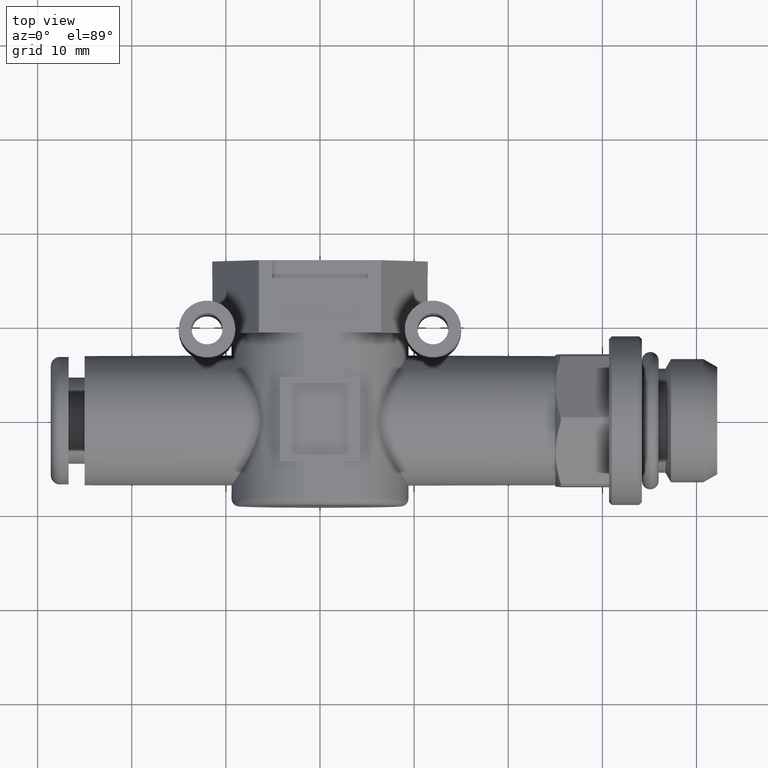
[diagram: clean part render]
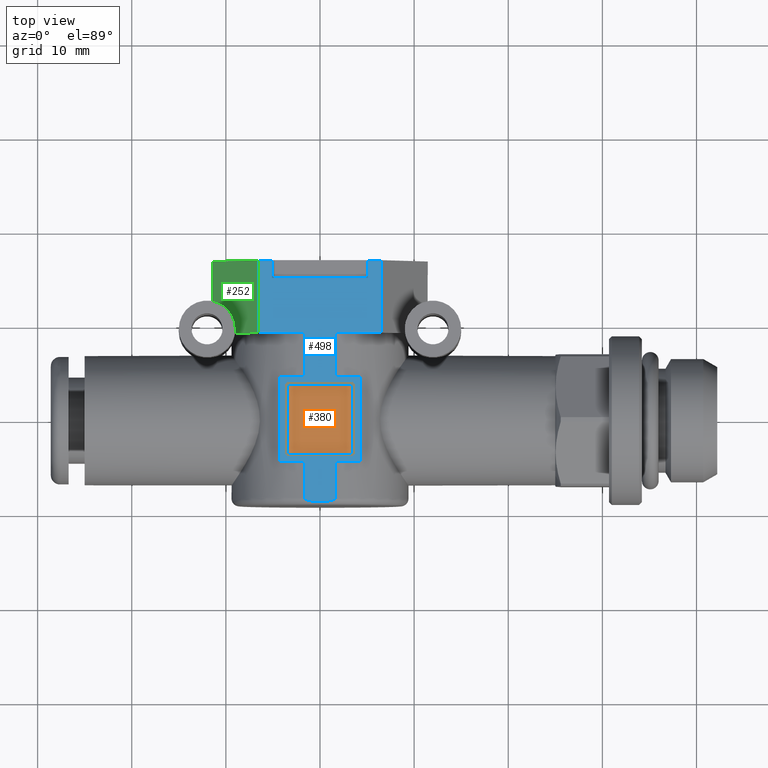
[diagram: same view with three faces highlighted in distinct colors, each labeled with its STEP entity id]
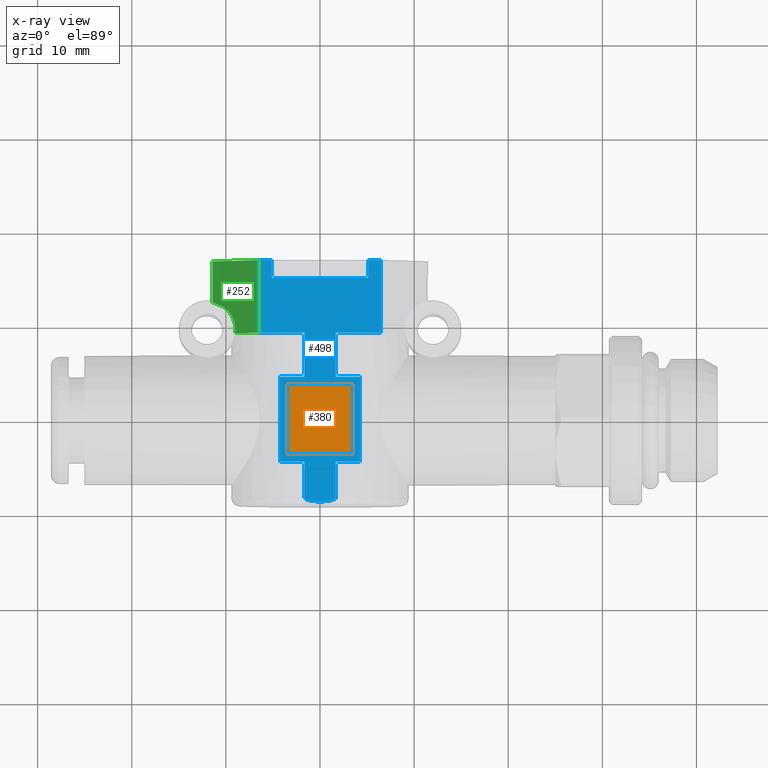
[diagram: x-ray of the same camera — body ghosted, the three highlighted faces saturated]
A machine part, top view with three faces highlighted in distinct colors.
The next image is the same camera in x-ray (body ghosted, the three faces saturated) — at least one of them is partly hidden behind the body in this view.
Their STEP definitions:

[orange] entity #380 — the highlighted planar face has unit normal (0, 0, 1).
#380 = ADVANCED_FACE( '', ( #813 ), #814, .T. );
#813 = FACE_OUTER_BOUND( '', #1350, .T. );
#814 = PLANE( '', #1351 );
#1350 = EDGE_LOOP( '', ( #2174, #2175, #2176, #2177 ) );
#1351 = AXIS2_PLACEMENT_3D( '', #2178, #2179, #2180 );
#2174 = ORIENTED_EDGE( '', *, *, #3063, .F. );
#2175 = ORIENTED_EDGE( '', *, *, #3006, .F. );
#2176 = ORIENTED_EDGE( '', *, *, #3115, .T. );
#2177 = ORIENTED_EDGE( '', *, *, #2869, .T. );
#2178 = CARTESIAN_POINT( '', ( 3.50000000000000, 3.75000000000000, 8.95000000000000 ) );
#2179 = DIRECTION( '', ( 0.000000000000000, -0.000000000000000, 1.00000000000000 ) );
#2180 = DIRECTION( '', ( 1.00000000000000, 0.000000000000000, -0.000000000000000 ) );
#2869 = EDGE_CURVE( '', #3336, #3333, #3337, .T. );
#3006 = EDGE_CURVE( '', #3564, #3560, #3566, .T. );
#3063 = EDGE_CURVE( '', #3560, #3333, #3656, .T. );
#3115 = EDGE_CURVE( '', #3564, #3336, #3732, .T. );
#3333 = VERTEX_POINT( '', #4015 );
#3336 = VERTEX_POINT( '', #4019 );
#3337 = LINE( '', #4020, #4021 );
#3560 = VERTEX_POINT( '', #4541 );
#3564 = VERTEX_POINT( '', #4547 );
#3566 = LINE( '', #4550, #4551 );
#3656 = LINE( '', #4802, #4803 );
#3732 = LINE( '', #4949, #4950 );
#4015 = CARTESIAN_POINT( '', ( -3.50000000000000, -3.75000000000000, 8.95000000000000 ) );
#4019 = CARTESIAN_POINT( '', ( -3.50000000000000, 3.75000000000000, 8.95000000000000 ) );
#4020 = CARTESIAN_POINT( '', ( -3.50000000000000, 3.75000000000000, 8.95000000000000 ) );
#4021 = VECTOR( '', #5446, 1000.00000000000 );
#4541 = CARTESIAN_POINT( '', ( 3.50000000000000, -3.75000000000000, 8.95000000000000 ) );
#4547 = CARTESIAN_POINT( '', ( 3.50000000000000, 3.75000000000000, 8.95000000000000 ) );
#4550 = CARTESIAN_POINT( '', ( 3.50000000000000, 3.75000000000000, 8.95000000000000 ) );
#4551 = VECTOR( '', #5611, 1000.00000000000 );
#4802 = CARTESIAN_POINT( '', ( 3.50000000000000, -3.75000000000000, 8.95000000000000 ) );
#4803 = VECTOR( '', #5692, 1000.00000000000 );
#4949 = CARTESIAN_POINT( '', ( 3.50000000000000, 3.75000000000000, 8.95000000000000 ) );
#4950 = VECTOR( '', #5754, 1000.00000000000 );
#5446 = DIRECTION( '', ( -0.000000000000000, -1.00000000000000, -0.000000000000000 ) );
#5611 = DIRECTION( '', ( -0.000000000000000, -1.00000000000000, -0.000000000000000 ) );
#5692 = DIRECTION( '', ( -1.00000000000000, 0.000000000000000, 0.000000000000000 ) );
#5754 = DIRECTION( '', ( -1.00000000000000, 0.000000000000000, 0.000000000000000 ) );

[blue] entity #498 — the highlighted planar face has unit normal (0, 0, -1).
#498 = ADVANCED_FACE( '', ( #1025, #1026 ), #1027, .F. );
#1025 = FACE_BOUND( '', #1562, .T. );
#1026 = FACE_OUTER_BOUND( '', #1563, .T. );
#1027 = PLANE( '', #1564 );
#1562 = EDGE_LOOP( '', ( #2645, #2646, #2647, #2648 ) );
#1563 = EDGE_LOOP( '', ( #2649, #2650, #2651, #2652, #2653, #2654, #2655, #2656, #2657, #2658, #2659, #2660, #2661, #2662, #2663, #2664, #2665, #2666, #2667, #2668 ) );
#1564 = AXIS2_PLACEMENT_3D( '', #2669, #2670, #2671 );
#2645 = ORIENTED_EDGE( '', *, *, #2871, .F. );
#2646 = ORIENTED_EDGE( '', *, *, #3257, .T. );
#2647 = ORIENTED_EDGE( '', *, *, #3004, .T. );
#2648 = ORIENTED_EDGE( '', *, *, #3064, .F. );
#2649 = ORIENTED_EDGE( '', *, *, #2951, .F. );
#2650 = ORIENTED_EDGE( '', *, *, #3185, .T. );
#2651 = ORIENTED_EDGE( '', *, *, #3262, .F. );
#2652 = ORIENTED_EDGE( '', *, *, #2848, .T. );
#2653 = ORIENTED_EDGE( '', *, *, #2965, .T. );
#2654 = ORIENTED_EDGE( '', *, *, #3040, .F. );
#2655 = ORIENTED_EDGE( '', *, *, #2873, .T. );
#2656 = ORIENTED_EDGE( '', *, *, #3144, .T. );
#2657 = ORIENTED_EDGE( '', *, *, #3263, .T. );
#2658 = ORIENTED_EDGE( '', *, *, #3037, .F. );
#2659 = ORIENTED_EDGE( '', *, *, #3200, .T. );
#2660 = ORIENTED_EDGE( '', *, *, #3082, .F. );
#2661 = ORIENTED_EDGE( '', *, *, #2959, .T. );
#2662 = ORIENTED_EDGE( '', *, *, #3197, .T. );
#2663 = ORIENTED_EDGE( '', *, *, #3055, .T. );
#2664 = ORIENTED_EDGE( '', *, *, #3080, .F. );
#2665 = ORIENTED_EDGE( '', *, *, #3181, .T. );
#2666 = ORIENTED_EDGE( '', *, *, #2865, .F. );
#2667 = ORIENTED_EDGE( '', *, *, #3240, .F. );
#2668 = ORIENTED_EDGE( '', *, *, #3174, .T. );
#2669 = CARTESIAN_POINT( '', ( -10.0000000000000, 10.0000000000000, 9.25000000000000 ) );
#2670 = DIRECTION( '', ( 0.000000000000000, 0.000000000000000, -1.00000000000000 ) );
#2671 = DIRECTION( '', ( -1.00000000000000, 0.000000000000000, 0.000000000000000 ) );
#2848 = EDGE_CURVE( '', #3298, #3296, #3299, .T. );
#2865 = EDGE_CURVE( '', #3327, #3329, #3330, .T. );
#2871 = EDGE_CURVE( '', #3338, #3334, #3340, .T. );
#2873 = EDGE_CURVE( '', #3342, #3343, #3344, .T. );
#2951 = EDGE_CURVE( '', #3473, #3474, #3475, .T. );
#2959 = EDGE_CURVE( '', #3487, #3488, #3489, .T. );
#2965 = EDGE_CURVE( '', #3296, #3496, #3498, .T. );
#3004 = EDGE_CURVE( '', #3562, #3559, #3563, .T. );
#3037 = EDGE_CURVE( '', #3613, #3615, #3616, .F. );
#3040 = EDGE_CURVE( '', #3342, #3496, #3620, .F. );
#3055 = EDGE_CURVE( '', #3639, #3642, #3644, .T. );
#3064 = EDGE_CURVE( '', #3334, #3559, #3657, .T. );
#3080 = EDGE_CURVE( '', #3682, #3642, #3684, .T. );
#3082 = EDGE_CURVE( '', #3487, #3670, #3686, .T. );
#3144 = EDGE_CURVE( '', #3343, #3773, #3775, .T. );
#3174 = EDGE_CURVE( '', #3813, #3474, #3815, .T. );
#3181 = EDGE_CURVE( '', #3682, #3329, #3824, .T. );
#3185 = EDGE_CURVE( '', #3473, #3827, #3829, .T. );
#3197 = EDGE_CURVE( '', #3488, #3639, #3846, .T. );
#3200 = EDGE_CURVE( '', #3613, #3670, #3849, .T. );
#3240 = EDGE_CURVE( '', #3813, #3327, #3902, .T. );
#3257 = EDGE_CURVE( '', #3338, #3562, #3923, .T. );
#3262 = EDGE_CURVE( '', #3298, #3827, #3929, .T. );
#3263 = EDGE_CURVE( '', #3773, #3615, #3930, .T. );
#3296 = VERTEX_POINT( '', #3964 );
#3298 = VERTEX_POINT( '', #3967 );
#3299 = LINE( '', #3968, #3969 );
#3327 = VERTEX_POINT( '', #4006 );
#3329 = VERTEX_POINT( '', #4009 );
#3330 = LINE( '', #4010, #4011 );
#3334 = VERTEX_POINT( '', #4016 );
#3338 = VERTEX_POINT( '', #4022 );
#3340 = LINE( '', #4025, #4026 );
#3342 = VERTEX_POINT( '', #4028 );
#3343 = VERTEX_POINT( '', #4029 );
#3344 = LINE( '', #4030, #4031 );
#3473 = VERTEX_POINT( '', #4326 );
#3474 = VERTEX_POINT( '', #4327 );
#3475 = LINE( '', #4328, #4329 );
#3487 = VERTEX_POINT( '', #4346 );
#3488 = VERTEX_POINT( '', #4347 );
#3489 = LINE( '', #4348, #4349 );
#3496 = VERTEX_POINT( '', #4358 );
#3498 = LINE( '', #4360, #4361 );
#3559 = VERTEX_POINT( '', #4540 );
#3562 = VERTEX_POINT( '', #4544 );
#3563 = LINE( '', #4545, #4546 );
#3613 = VERTEX_POINT( '', #4748 );
#3615 = VERTEX_POINT( '', #4750 );
#3616 = LINE( '', #4751, #4752 );
#3620 = LINE( '', #4757, #4758 );
#3639 = VERTEX_POINT( '', #4783 );
#3642 = VERTEX_POINT( '', #4787 );
#3644 = LINE( '', #4789, #4790 );
#3657 = LINE( '', #4804, #4805 );
#3670 = VERTEX_POINT( '', #4823 );
#3682 = VERTEX_POINT( '', #4885 );
#3684 = LINE( '', #4887, #4888 );
#3686 = LINE( '', #4891, #4892 );
#3773 = VERTEX_POINT( '', #5006 );
#3775 = LINE( '', #5009, #5010 );
#3813 = VERTEX_POINT( '', #5116 );
#3815 = LINE( '', #5119, #5120 );
#3824 = LINE( '', #5129, #5130 );
#3827 = VERTEX_POINT( '', #5133 );
#3829 = LINE( '', #5136, #5137 );
#3846 = LINE( '', #5157, #5158 );
#3849 = B_SPLINE_CURVE_WITH_KNOTS( '', 3, ( #5182, #5183, #5184, #5185, #5186, #5187, #5188, #5189, #5190, #5191, #5192, #5193, #5194, #5195, #5196, #5197, #5198, #5199, #5200, #5201, #5202, #5203 ), .UNSPECIFIED., .F., .F., ( 4, 2, 2, 2, 2, 2, 2, 2, 2, 2, 4 ), ( 0.00548674398466226, 0.00560066561936967, 0.00571458725407708, 0.00594243052349190, 0.00639811706232154, 0.00730949013998081, 0.00822086321764009, 0.00867654975646972, 0.00890439302588454, 0.00901831466059195, 0.00913223629529936 ), .UNSPECIFIED. );
#3902 = LINE( '', #5305, #5306 );
#3923 = LINE( '', #5376, #5377 );
#3929 = LINE( '', #5383, #5384 );
#3930 = LINE( '', #5385, #5386 );
#3964 = CARTESIAN_POINT( '', ( -6.49519052838329, 9.20000000000000, 9.25000000000000 ) );
#3967 = CARTESIAN_POINT( '', ( -6.49519052838329, 16.9000000000000, 9.25000000000000 ) );
#3968 = CARTESIAN_POINT( '', ( -6.49519052838329, 16.9000000000000, 9.25000000000000 ) );
#3969 = VECTOR( '', #5423, 1000.00000000000 );
#4006 = CARTESIAN_POINT( '', ( 6.49519052838329, 16.9000000000000, 9.25000000000000 ) );
#4009 = CARTESIAN_POINT( '', ( 6.49519052838329, 9.20000000000000, 9.25000000000000 ) );
#4010 = CARTESIAN_POINT( '', ( 6.49519052838329, 16.9000000000000, 9.25000000000000 ) );
#4011 = VECTOR( '', #5443, 1000.00000000000 );
#4016 = CARTESIAN_POINT( '', ( -3.50000000000000, -3.75000000000000, 9.25000000000000 ) );
#4022 = CARTESIAN_POINT( '', ( -3.50000000000000, 3.75000000000000, 9.25000000000000 ) );
#4025 = CARTESIAN_POINT( '', ( -3.50000000000000, 3.75000000000000, 9.25000000000000 ) );
#4026 = VECTOR( '', #5448, 1000.00000000000 );
#4028 = CARTESIAN_POINT( '', ( -1.67257286836778, 4.50000000000000, 9.25000000000000 ) );
#4029 = CARTESIAN_POINT( '', ( -4.25000000000000, 4.50000000000000, 9.25000000000000 ) );
#4030 = CARTESIAN_POINT( '', ( 4.25000000000000, 4.50000000000000, 9.25000000000000 ) );
#4031 = VECTOR( '', #5449, 1000.00000000000 );
#4326 = CARTESIAN_POINT( '', ( -5.10954988232819, 15.0000000000000, 9.25000000000000 ) );
#4327 = CARTESIAN_POINT( '', ( 5.10954988232819, 15.0000000000000, 9.25000000000000 ) );
#4328 = CARTESIAN_POINT( '', ( -10.0000000000000, 15.0000000000000, 9.25000000000000 ) );
#4329 = VECTOR( '', #5555, 1000.00000000000 );
#4346 = CARTESIAN_POINT( '', ( 1.67257286836824, -4.50000000000000, 9.25000000000000 ) );
#4347 = CARTESIAN_POINT( '', ( 4.25000000000000, -4.50000000000000, 9.25000000000000 ) );
#4348 = CARTESIAN_POINT( '', ( -4.25000000000000, -4.50000000000000, 9.25000000000000 ) );
#4349 = VECTOR( '', #5564, 1000.00000000000 );
#4358 = CARTESIAN_POINT( '', ( -1.67257286836778, 9.20000000000000, 9.25000000000000 ) );
#4360 = CARTESIAN_POINT( '', ( -6.49519052838329, 9.20000000000000, 9.25000000000000 ) );
#4361 = VECTOR( '', #5573, 1000.00000000000 );
#4540 = CARTESIAN_POINT( '', ( 3.50000000000000, -3.75000000000000, 9.25000000000000 ) );
#4544 = CARTESIAN_POINT( '', ( 3.50000000000000, 3.75000000000000, 9.25000000000000 ) );
#4545 = CARTESIAN_POINT( '', ( 3.50000000000000, 3.75000000000000, 9.25000000000000 ) );
#4546 = VECTOR( '', #5609, 1000.00000000000 );
#4748 = CARTESIAN_POINT( '', ( -1.67257286836778, -8.30000000000000, 9.25000000000000 ) );
#4750 = CARTESIAN_POINT( '', ( -1.67257286836778, -4.50000000000000, 9.25000000000000 ) );
#4751 = CARTESIAN_POINT( '', ( -1.67257286836778, -9.10000000000000, 9.25000000000000 ) );
#4752 = VECTOR( '', #5657, 1000.00000000000 );
#4757 = CARTESIAN_POINT( '', ( -1.67257286836778, -9.10000000000000, 9.25000000000000 ) );
#4758 = VECTOR( '', #5662, 1000.00000000000 );
#4783 = CARTESIAN_POINT( '', ( 4.25000000000000, 4.50000000000000, 9.25000000000000 ) );
#4787 = CARTESIAN_POINT( '', ( 1.67257286836778, 4.50000000000000, 9.25000000000000 ) );
#4789 = CARTESIAN_POINT( '', ( 4.25000000000000, 4.50000000000000, 9.25000000000000 ) );
#4790 = VECTOR( '', #5679, 1000.00000000000 );
#4804 = CARTESIAN_POINT( '', ( -3.50000000000000, -3.75000000000000, 9.25000000000000 ) );
#4805 = VECTOR( '', #5693, 1000.00000000000 );
#4823 = CARTESIAN_POINT( '', ( 1.67257286836870, -8.30000000000078, 9.25000000000000 ) );
#4885 = CARTESIAN_POINT( '', ( 1.67257286836778, 9.20000000000000, 9.25000000000000 ) );
#4887 = CARTESIAN_POINT( '', ( 1.67257286836778, -9.10000000000000, 9.25000000000000 ) );
#4888 = VECTOR( '', #5713, 1000.00000000000 );
#4891 = CARTESIAN_POINT( '', ( 1.67257286836778, -9.10000000000000, 9.25000000000000 ) );
#4892 = VECTOR( '', #5715, 1000.00000000000 );
#5006 = CARTESIAN_POINT( '', ( -4.25000000000000, -4.50000000000000, 9.25000000000000 ) );
#5009 = CARTESIAN_POINT( '', ( -4.25000000000000, 4.50000000000000, 9.25000000000000 ) );
#5010 = VECTOR( '', #5790, 1000.00000000000 );
#5116 = CARTESIAN_POINT( '', ( 5.10954988232819, 16.9000000000000, 9.25000000000000 ) );
#5119 = CARTESIAN_POINT( '', ( 5.10954988232819, 10.0000000000000, 9.25000000000000 ) );
#5120 = VECTOR( '', #5824, 1000.00000000000 );
#5129 = CARTESIAN_POINT( '', ( -6.49519052838329, 9.20000000000000, 9.25000000000000 ) );
#5130 = VECTOR( '', #5831, 1000.00000000000 );
#5133 = CARTESIAN_POINT( '', ( -5.10954988232819, 16.9000000000000, 9.25000000000000 ) );
#5136 = CARTESIAN_POINT( '', ( -5.10954988232819, 10.0000000000000, 9.25000000000000 ) );
#5137 = VECTOR( '', #5833, 1000.00000000000 );
#5157 = CARTESIAN_POINT( '', ( 4.25000000000000, -4.50000000000000, 9.25000000000000 ) );
#5158 = VECTOR( '', #5849, 1000.00000000000 );
#5182 = CARTESIAN_POINT( '', ( -1.67257286837443, -8.29999999999996, 9.25000000000000 ) );
#5183 = CARTESIAN_POINT( '', ( -1.67257286837444, -8.33806728583355, 9.25000000000000 ) );
#5184 = CARTESIAN_POINT( '', ( -1.65587314777277, -8.37549144049542, 9.25000000000000 ) );
#5185 = CARTESIAN_POINT( '', ( -1.60943639738337, -8.43601463646205, 9.25000000000000 ) );
#5186 = CARTESIAN_POINT( '', ( -1.57983493554609, -8.46129566916637, 9.25000000000000 ) );
#5187 = CARTESIAN_POINT( '', ( -1.48650135326004, -8.52683194244745, 9.25000000000000 ) );
#5188 = CARTESIAN_POINT( '', ( -1.41625161918915, -8.55876215565025, 9.25000000000000 ) );
#5189 = CARTESIAN_POINT( '', ( -1.20450962645265, -8.63859459409826, 9.25000000000000 ) );
#5190 = CARTESIAN_POINT( '', ( -1.05599758131416, -8.67191149100260, 9.25000000000000 ) );
#5191 = CARTESIAN_POINT( '', ( -0.608813987277906, -8.74816739329717, 9.25000000000001 ) );
#5192 = CARTESIAN_POINT( '', ( -0.307768663372542, -8.76613227286528, 9.25000000000000 ) );
#5193 = CARTESIAN_POINT( '', ( 0.297475030797506, -8.76660164108544, 9.25000000000000 ) );
#5194 = CARTESIAN_POINT( '', ( 0.603875096460102, -8.74870138543589, 9.25000000000000 ) );
#5195 = CARTESIAN_POINT( '', ( 1.05303643696222, -8.67256776467147, 9.25000000000000 ) );
#5196 = CARTESIAN_POINT( '', ( 1.20095642052042, -8.63971541027620, 9.25000000000000 ) );
#5197 = CARTESIAN_POINT( '', ( 1.41531726153773, -8.55922178759227, 9.25000000000000 ) );
#5198 = CARTESIAN_POINT( '', ( 1.48562053223312, -8.52739280964452, 9.25000000000000 ) );
#5199 = CARTESIAN_POINT( '', ( 1.57985642235266, -8.46130920047564, 9.25000000000000 ) );
#5200 = CARTESIAN_POINT( '', ( 1.60935039700309, -8.43612464844256, 9.25000000000000 ) );
#5201 = CARTESIAN_POINT( '', ( 1.65594873919592, -8.37539499454185, 9.25000000000000 ) );
#5202 = CARTESIAN_POINT( '', ( 1.67257286836781, -8.33824448453661, 9.25000000000000 ) );
#5203 = CARTESIAN_POINT( '', ( 1.67257286836803, -8.30000000000083, 9.25000000000000 ) );
#5305 = CARTESIAN_POINT( '', ( -6.49519052838329, 16.9000000000000, 9.25000000000000 ) );
#5306 = VECTOR( '', #5901, 1000.00000000000 );
#5376 = CARTESIAN_POINT( '', ( -3.50000000000000, 3.75000000000000, 9.25000000000000 ) );
#5377 = VECTOR( '', #5911, 1000.00000000000 );
#5383 = CARTESIAN_POINT( '', ( -6.49519052838329, 16.9000000000000, 9.25000000000000 ) );
#5384 = VECTOR( '', #5915, 1000.00000000000 );
#5385 = CARTESIAN_POINT( '', ( -4.25000000000000, -4.50000000000000, 9.25000000000000 ) );
#5386 = VECTOR( '', #5916, 1000.00000000000 );
#5423 = DIRECTION( '', ( -0.000000000000000, -1.00000000000000, -0.000000000000000 ) );
#5443 = DIRECTION( '', ( -0.000000000000000, -1.00000000000000, -0.000000000000000 ) );
#5448 = DIRECTION( '', ( -0.000000000000000, -1.00000000000000, -0.000000000000000 ) );
#5449 = DIRECTION( '', ( -1.00000000000000, 0.000000000000000, 0.000000000000000 ) );
#5555 = DIRECTION( '', ( 1.00000000000000, -0.000000000000000, 0.000000000000000 ) );
#5564 = DIRECTION( '', ( 1.00000000000000, 0.000000000000000, 0.000000000000000 ) );
#5573 = DIRECTION( '', ( 1.00000000000000, 0.000000000000000, 2.67078150886606E-016 ) );
#5609 = DIRECTION( '', ( -0.000000000000000, -1.00000000000000, -0.000000000000000 ) );
#5657 = DIRECTION( '', ( -0.000000000000000, -1.00000000000000, -0.000000000000000 ) );
#5662 = DIRECTION( '', ( -0.000000000000000, -1.00000000000000, -0.000000000000000 ) );
#5679 = DIRECTION( '', ( -1.00000000000000, 0.000000000000000, 0.000000000000000 ) );
#5693 = DIRECTION( '', ( 1.00000000000000, 0.000000000000000, 0.000000000000000 ) );
#5713 = DIRECTION( '', ( -0.000000000000000, -1.00000000000000, -0.000000000000000 ) );
#5715 = DIRECTION( '', ( -0.000000000000000, -1.00000000000000, -0.000000000000000 ) );
#5790 = DIRECTION( '', ( 0.000000000000000, -1.00000000000000, 0.000000000000000 ) );
#5824 = DIRECTION( '', ( 0.000000000000000, -1.00000000000000, 0.000000000000000 ) );
#5831 = DIRECTION( '', ( 1.00000000000000, 0.000000000000000, 2.67078150886606E-016 ) );
#5833 = DIRECTION( '', ( 0.000000000000000, 1.00000000000000, 0.000000000000000 ) );
#5849 = DIRECTION( '', ( 0.000000000000000, 1.00000000000000, 0.000000000000000 ) );
#5901 = DIRECTION( '', ( 1.00000000000000, 0.000000000000000, 2.67078150886606E-016 ) );
#5911 = DIRECTION( '', ( 1.00000000000000, 0.000000000000000, 0.000000000000000 ) );
#5915 = DIRECTION( '', ( 1.00000000000000, 0.000000000000000, 2.67078150886606E-016 ) );
#5916 = DIRECTION( '', ( 1.00000000000000, 0.000000000000000, 0.000000000000000 ) );

[green] entity #252 — the highlighted planar face has unit normal (0.866, 0, -0.5).
#252 = ADVANCED_FACE( '', ( #594 ), #595, .F. );
#594 = FACE_OUTER_BOUND( '', #1131, .T. );
#595 = PLANE( '', #1132 );
#1131 = EDGE_LOOP( '', ( #1656, #1657, #1658, #1659, #1660 ) );
#1132 = AXIS2_PLACEMENT_3D( '', #1661, #1662, #1663 );
#1656 = ORIENTED_EDGE( '', *, *, #2846, .F. );
#1657 = ORIENTED_EDGE( '', *, *, #2847, .T. );
#1658 = ORIENTED_EDGE( '', *, *, #2848, .F. );
#1659 = ORIENTED_EDGE( '', *, *, #2849, .F. );
#1660 = ORIENTED_EDGE( '', *, *, #2850, .T. );
#1661 = CARTESIAN_POINT( '', ( -11.4282305532251, 16.9000000000000, 0.705724041203130 ) );
#1662 = DIRECTION( '', ( 0.866025403784439, 0.000000000000000, -0.500000000000000 ) );
#1663 = DIRECTION( '', ( -0.500000000000000, 0.000000000000000, -0.866025403784439 ) );
#2846 = EDGE_CURVE( '', #3293, #3294, #3295, .F. );
#2847 = EDGE_CURVE( '', #3293, #3296, #3297, .T. );
#2848 = EDGE_CURVE( '', #3298, #3296, #3299, .T. );
#2849 = EDGE_CURVE( '', #3300, #3298, #3301, .T. );
#2850 = EDGE_CURVE( '', #3300, #3294, #3302, .T. );
#3293 = VERTEX_POINT( '', #3961 );
#3294 = VERTEX_POINT( '', #3962 );
#3295 = ELLIPSE( '', #3963, 6.00000000000000, 3.00000000000000 );
#3296 = VERTEX_POINT( '', #3964 );
#3297 = LINE( '', #3965, #3966 );
#3298 = VERTEX_POINT( '', #3967 );
#3299 = LINE( '', #3968, #3969 );
#3300 = VERTEX_POINT( '', #3970 );
#3301 = LINE( '', #3971, #3972 );
#3302 = LINE( '', #3973, #3974 );
#3961 = CARTESIAN_POINT( '', ( -9.02678625053630, 9.20000000000000, 4.86514758500697 ) );
#3962 = CARTESIAN_POINT( '', ( -11.4282305532251, 12.5450092868673, 0.705724041203125 ) );
#3963 = AXIS2_PLACEMENT_3D( '', #5419, #5420, #5421 );
#3964 = CARTESIAN_POINT( '', ( -6.49519052838329, 9.20000000000000, 9.25000000000000 ) );
#3965 = CARTESIAN_POINT( '', ( -11.4282305532251, 9.20000000000000, 0.705724041203130 ) );
#3966 = VECTOR( '', #5422, 1000.00000000000 );
#3967 = CARTESIAN_POINT( '', ( -6.49519052838329, 16.9000000000000, 9.25000000000000 ) );
#3968 = CARTESIAN_POINT( '', ( -6.49519052838329, 16.9000000000000, 9.25000000000000 ) );
#3969 = VECTOR( '', #5423, 1000.00000000000 );
#3970 = CARTESIAN_POINT( '', ( -11.4282305532251, 16.9000000000000, 0.705724041203125 ) );
#3971 = CARTESIAN_POINT( '', ( -11.4282305532251, 16.9000000000000, 0.705724041203130 ) );
#3972 = VECTOR( '', #5424, 1000.00000000000 );
#3973 = CARTESIAN_POINT( '', ( -11.4282305532251, 16.9000000000000, 0.705724041203125 ) );
#3974 = VECTOR( '', #5425, 1000.00000000000 );
#5419 = CARTESIAN_POINT( '', ( -12.0000000000000, 9.60000000000000, -0.284609690826528 ) );
#5420 = DIRECTION( '', ( 0.866025403784439, 0.000000000000000, -0.500000000000000 ) );
#5421 = DIRECTION( '', ( -0.500000000000000, 0.000000000000000, -0.866025403784439 ) );
#5422 = DIRECTION( '', ( 0.500000000000000, 0.000000000000000, 0.866025403784439 ) );
#5423 = DIRECTION( '', ( -0.000000000000000, -1.00000000000000, -0.000000000000000 ) );
#5424 = DIRECTION( '', ( 0.500000000000000, 0.000000000000000, 0.866025403784439 ) );
#5425 = DIRECTION( '', ( -0.000000000000000, -1.00000000000000, -0.000000000000000 ) );